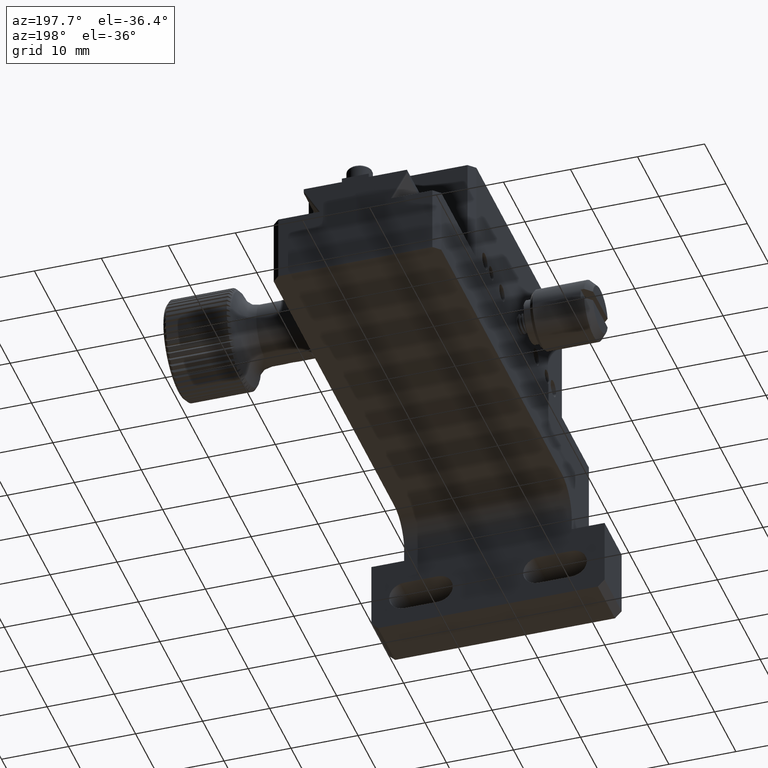
[diagram: clean part render]
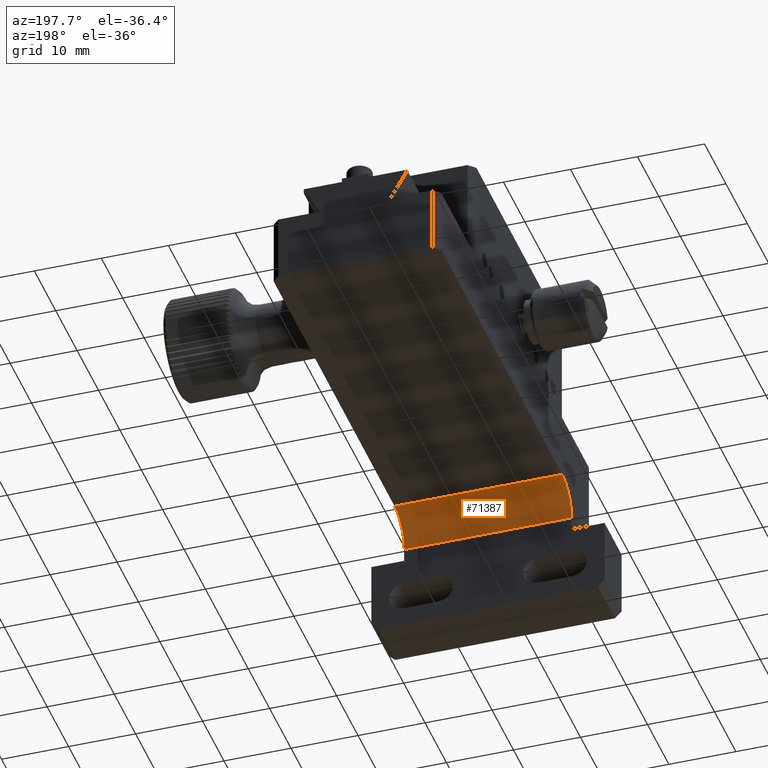
[diagram: same view with one face highlighted and labeled with its STEP entity id]
A machine part, auxiliary view. The second image highlights one B-rep face of the part: STEP entity #71387.
In plain terms, the highlighted cylindrical surface (edge-blend (fillet) strip) has radius 4.5 mm, axis along (-1, -0, 0).
Its self-contained STEP definition (entity closure, byte-faithful):
#2731 = DIRECTION ( 'NONE',  ( 0.000000000000000000, 0.000000000000000000, 1.000000000000000000 ) ) ;
#4572 = ORIENTED_EDGE ( 'NONE', *, *, #86833, .F. ) ;
#4906 = VECTOR ( 'NONE', #110152, 1000.000000000000000 ) ;
#5962 = DIRECTION ( 'NONE',  ( -1.000000000000000000, -1.282749433769087582E-30, 1.224646799147353207E-16 ) ) ;
#7408 = EDGE_CURVE ( 'NONE', #93239, #42136, #36989, .T. ) ;
#9271 = VECTOR ( 'NONE', #84975, 1000.000000000000000 ) ;
#11560 = FACE_OUTER_BOUND ( 'NONE', #82367, .T. ) ;
#14367 = CARTESIAN_POINT ( 'NONE',  ( 76.21116878375734416, 26.13550279078399896, 63.45689688579012255 ) ) ;
#18904 = CARTESIAN_POINT ( 'NONE',  ( 51.21116878375735126, 21.63550279078405580, 58.95689688579008703 ) ) ;
#25430 = CARTESIAN_POINT ( 'NONE',  ( 51.21116878375735126, 26.13550279078399896, 63.45689688579012255 ) ) ;
#28837 = CARTESIAN_POINT ( 'NONE',  ( 51.21116878375735126, 26.13550279078399896, 63.45689688579012255 ) ) ;
#30388 = CYLINDRICAL_SURFACE ( 'NONE', #43438, 4.500000000000003553 ) ;
#31206 = DIRECTION ( 'NONE',  ( 0.000000000000000000, -1.156482317317870502E-14, 1.000000000000000000 ) ) ;
#31707 = AXIS2_PLACEMENT_3D ( 'NONE', #111363, #66576, #31206 ) ;
#36989 = CIRCLE ( 'NONE', #46396, 4.500000000000003553 ) ;
#37080 = DIRECTION ( 'NONE',  ( 0.000000000000000000, 0.000000000000000000, 1.000000000000000000 ) ) ;
#42136 = VERTEX_POINT ( 'NONE', #25430 ) ;
#43438 = AXIS2_PLACEMENT_3D ( 'NONE', #102276, #94606, #2731 ) ;
#46279 = CARTESIAN_POINT ( 'NONE',  ( 76.21116878375734416, 21.63550279078404870, 58.95689688579008703 ) ) ;
#46396 = AXIS2_PLACEMENT_3D ( 'NONE', #86662, #5962, #37080 ) ;
#49030 = CARTESIAN_POINT ( 'NONE',  ( 51.21116878375735126, 21.63550279078404515, 58.95689688579006571 ) ) ;
#52896 = EDGE_CURVE ( 'NONE', #42136, #84911, #64213, .T. ) ;
#64010 = VERTEX_POINT ( 'NONE', #46279 ) ;
#64213 = LINE ( 'NONE', #28837, #4906 ) ;
#66576 = DIRECTION ( 'NONE',  ( 1.000000000000000000, 1.282749433769087582E-30, -1.224646799147353207E-16 ) ) ;
#71387 = ADVANCED_FACE ( 'NONE', ( #11560 ), #30388, .F. ) ;
#81837 = ORIENTED_EDGE ( 'NONE', *, *, #52896, .T. ) ;
#82367 = EDGE_LOOP ( 'NONE', ( #4572, #94172, #81837, #111373 ) ) ;
#82564 = EDGE_CURVE ( 'NONE', #84911, #64010, #107027, .T. ) ;
#84911 = VERTEX_POINT ( 'NONE', #14367 ) ;
#84975 = DIRECTION ( 'NONE',  ( 1.000000000000000000, 1.282749433769087582E-30, -1.224646799147353207E-16 ) ) ;
#86662 = CARTESIAN_POINT ( 'NONE',  ( 51.21116878375735126, 26.13550279078405225, 58.95689688579011545 ) ) ;
#86833 = EDGE_CURVE ( 'NONE', #93239, #64010, #93827, .T. ) ;
#93239 = VERTEX_POINT ( 'NONE', #18904 ) ;
#93827 = LINE ( 'NONE', #49030, #9271 ) ;
#94172 = ORIENTED_EDGE ( 'NONE', *, *, #7408, .T. ) ;
#94606 = DIRECTION ( 'NONE',  ( -1.000000000000000000, -1.282749433769087582E-30, 1.224646799147353207E-16 ) ) ;
#102276 = CARTESIAN_POINT ( 'NONE',  ( 51.21116878375735126, 26.13550279078405225, 58.95689688579011545 ) ) ;
#107027 = CIRCLE ( 'NONE', #31707, 4.500000000000003553 ) ;
#110152 = DIRECTION ( 'NONE',  ( 1.000000000000000000, 1.282749433769087582E-30, -1.224646799147353207E-16 ) ) ;
#111363 = CARTESIAN_POINT ( 'NONE',  ( 76.21116878375734416, 26.13550279078405225, 58.95689688579011545 ) ) ;
#111373 = ORIENTED_EDGE ( 'NONE', *, *, #82564, .T. ) ;